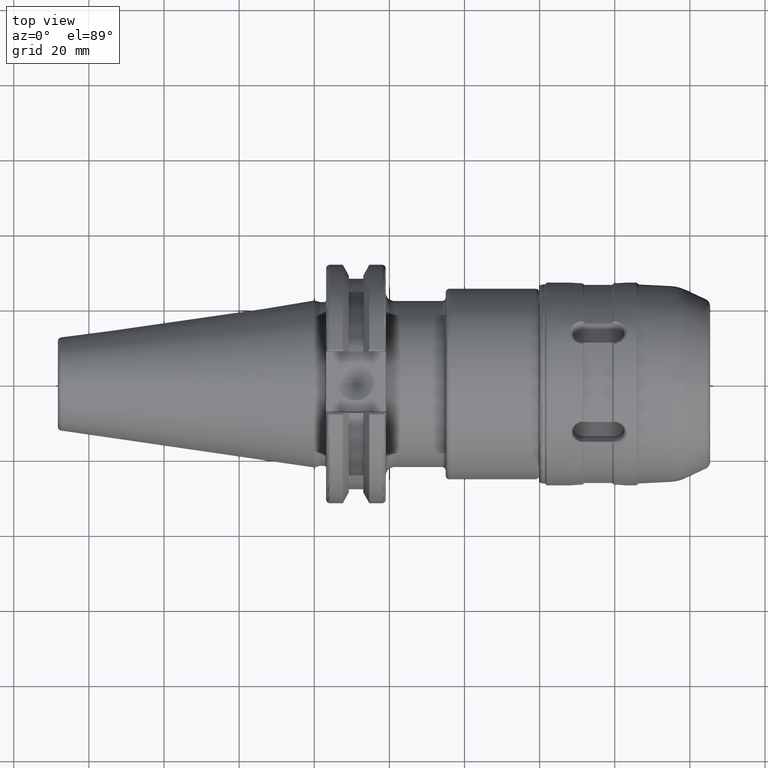
[diagram: clean part render]
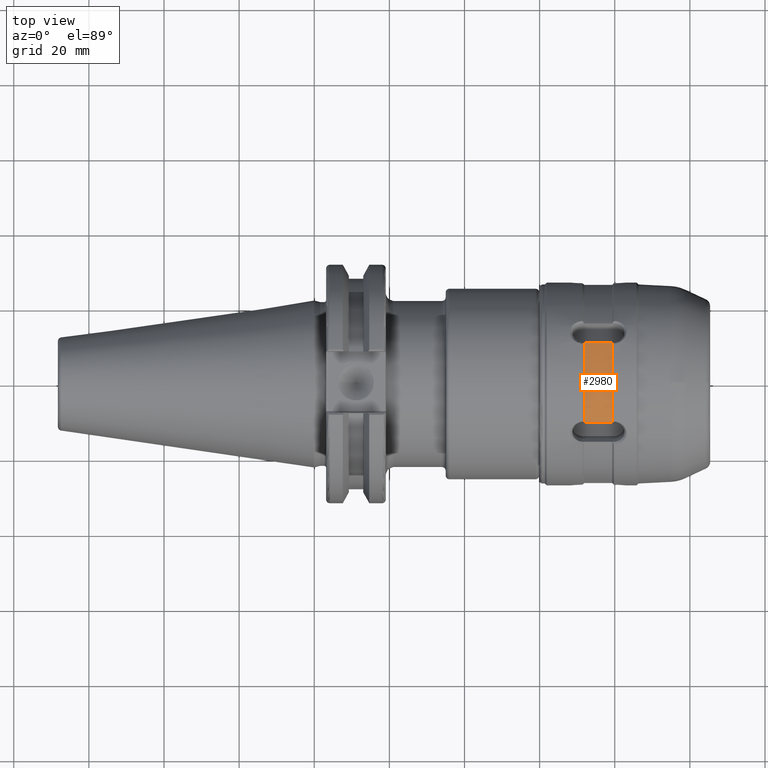
[diagram: same view with one face highlighted and labeled with its STEP entity id]
A machine part, top view. The second image highlights one B-rep face of the part: STEP entity #2980.
In plain terms, the highlighted cylindrical surface (partial cylindrical patch) has radius 26.5 mm, axis along (1, 0, 0).
Its self-contained STEP definition (entity closure, byte-faithful):
#208=CYLINDRICAL_SURFACE('',#3333,26.5);
#417=FACE_OUTER_BOUND('',#587,.T.);
#587=EDGE_LOOP('',(#2613,#2614,#2615,#2616));
#727=LINE('',#6080,#876);
#740=LINE('',#6369,#889);
#876=VECTOR('',#3932,10.);
#889=VECTOR('',#3957,10.);
#1047=CIRCLE('',#3293,26.5);
#1049=CIRCLE('',#3299,26.5);
#1342=VERTEX_POINT('',#6075);
#1343=VERTEX_POINT('',#6079);
#1349=VERTEX_POINT('',#6117);
#1360=VERTEX_POINT('',#6367);
#1746=EDGE_CURVE('',#1343,#1342,#727,.T.);
#1754=EDGE_CURVE('',#1349,#1342,#1047,.T.);
#1772=EDGE_CURVE('',#1349,#1360,#740,.T.);
#1777=EDGE_CURVE('',#1360,#1343,#1049,.T.);
#2613=ORIENTED_EDGE('',*,*,#1746,.T.);
#2614=ORIENTED_EDGE('',*,*,#1754,.F.);
#2615=ORIENTED_EDGE('',*,*,#1772,.T.);
#2616=ORIENTED_EDGE('',*,*,#1777,.T.);
#2980=ADVANCED_FACE('',(#417),#208,.T.);
#3293=AXIS2_PLACEMENT_3D('',#6121,#3939,#3940);
#3299=AXIS2_PLACEMENT_3D('',#6488,#3960,#3961);
#3333=AXIS2_PLACEMENT_3D('',#6590,#4047,#4048);
#3932=DIRECTION('',(1.,0.,0.));
#3939=DIRECTION('center_axis',(1.,0.,0.));
#3940=DIRECTION('ref_axis',(0.,0.,-1.));
#3957=DIRECTION('',(-1.,0.,0.));
#3960=DIRECTION('center_axis',(1.,0.,0.));
#3961=DIRECTION('ref_axis',(0.,0.,-1.));
#4047=DIRECTION('center_axis',(1.,0.,0.));
#4048=DIRECTION('ref_axis',(0.,1.,0.));
#6075=CARTESIAN_POINT('',(19.4,-10.5667443343283,24.3021380576471));
#6079=CARTESIAN_POINT('',(12.,-10.5667443343283,24.3021380576471));
#6080=CARTESIAN_POINT('',(15.7,-10.5667443343283,24.3021380576471));
#6117=CARTESIAN_POINT('',(19.4,10.5667443343283,24.3021380576471));
#6121=CARTESIAN_POINT('Origin',(19.4,0.,0.));
#6367=CARTESIAN_POINT('',(12.,10.5667443343283,24.3021380576471));
#6369=CARTESIAN_POINT('',(15.7,10.5667443343283,24.3021380576471));
#6488=CARTESIAN_POINT('Origin',(12.,0.,0.));
#6590=CARTESIAN_POINT('Origin',(15.7,0.,0.));